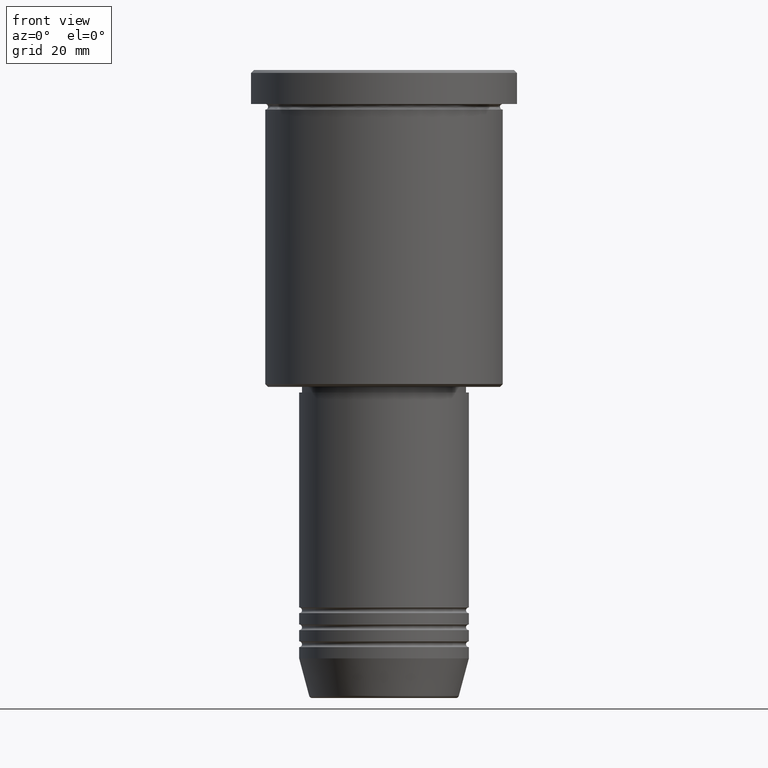
[diagram: clean part render]
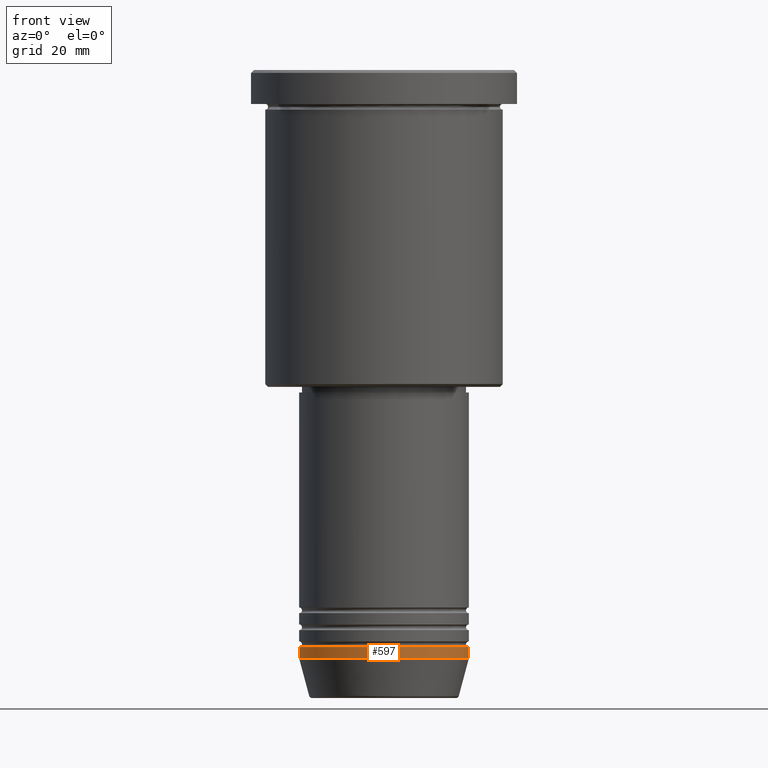
[diagram: same view with one face highlighted and labeled with its STEP entity id]
A machine part, front view. The second image highlights one B-rep face of the part: STEP entity #597.
In plain terms, the highlighted cylindrical surface (partial cylindrical patch) has radius 15 mm, axis along (-0, -0, 1).
Its self-contained STEP definition (entity closure, byte-faithful):
#52 = CARTESIAN_POINT ( 'NONE',  ( 0.000000000000000000, 0.000000000000000000, -104.0000000000000142 ) ) ;
#99 = DIRECTION ( 'NONE',  ( 1.000000000000000000, 0.000000000000000000, 0.000000000000000000 ) ) ;
#133 = ORIENTED_EDGE ( 'NONE', *, *, #996, .T. ) ;
#136 = DIRECTION ( 'NONE',  ( -0.000000000000000000, -0.000000000000000000, 1.000000000000000000 ) ) ;
#141 = FACE_OUTER_BOUND ( 'NONE', #880, .T. ) ;
#193 = VERTEX_POINT ( 'NONE', #867 ) ;
#205 = CIRCLE ( 'NONE', #349, 15.00000000000000000 ) ;
#218 = CARTESIAN_POINT ( 'NONE',  ( -15.00000000000000000, 1.836970198721029589E-15, -104.0000000000000142 ) ) ;
#276 = ORIENTED_EDGE ( 'NONE', *, *, #604, .T. ) ;
#298 = DIRECTION ( 'NONE',  ( -0.000000000000000000, -0.000000000000000000, 1.000000000000000000 ) ) ;
#345 = CARTESIAN_POINT ( 'NONE',  ( 15.00000000000000000, 0.000000000000000000, 0.000000000000000000 ) ) ;
#349 = AXIS2_PLACEMENT_3D ( 'NONE', #539, #445, #99 ) ;
#391 = VERTEX_POINT ( 'NONE', #475 ) ;
#445 = DIRECTION ( 'NONE',  ( -0.000000000000000000, -0.000000000000000000, 1.000000000000000000 ) ) ;
#475 = CARTESIAN_POINT ( 'NONE',  ( -15.00000000000000000, 1.836970198721029589E-15, -102.0000000000000142 ) ) ;
#509 = DIRECTION ( 'NONE',  ( 1.000000000000000000, 0.000000000000000000, 0.000000000000000000 ) ) ;
#539 = CARTESIAN_POINT ( 'NONE',  ( 0.000000000000000000, 0.000000000000000000, -102.0000000000000142 ) ) ;
#597 = ADVANCED_FACE ( 'NONE', ( #141 ), #1149, .T. ) ;
#604 = EDGE_CURVE ( 'NONE', #830, #193, #740, .T. ) ;
#686 = CARTESIAN_POINT ( 'NONE',  ( 0.000000000000000000, 0.000000000000000000, 0.000000000000000000 ) ) ;
#740 = CIRCLE ( 'NONE', #1025, 15.00000000000000000 ) ;
#793 = ORIENTED_EDGE ( 'NONE', *, *, #1053, .F. ) ;
#825 = LINE ( 'NONE', #345, #1179 ) ;
#830 = VERTEX_POINT ( 'NONE', #218 ) ;
#833 = CARTESIAN_POINT ( 'NONE',  ( -15.00000000000000000, 1.836970198721029589E-15, 0.000000000000000000 ) ) ;
#846 = LINE ( 'NONE', #833, #929 ) ;
#867 = CARTESIAN_POINT ( 'NONE',  ( 15.00000000000000000, 0.000000000000000000, -104.0000000000000142 ) ) ;
#880 = EDGE_LOOP ( 'NONE', ( #1063, #276, #133, #793 ) ) ;
#882 = DIRECTION ( 'NONE',  ( 1.000000000000000000, 0.000000000000000000, 0.000000000000000000 ) ) ;
#929 = VECTOR ( 'NONE', #298, 1000.000000000000000 ) ;
#969 = AXIS2_PLACEMENT_3D ( 'NONE', #686, #136, #509 ) ;
#996 = EDGE_CURVE ( 'NONE', #193, #1142, #825, .T. ) ;
#1025 = AXIS2_PLACEMENT_3D ( 'NONE', #52, #1145, #882 ) ;
#1053 = EDGE_CURVE ( 'NONE', #391, #1142, #205, .T. ) ;
#1063 = ORIENTED_EDGE ( 'NONE', *, *, #1182, .F. ) ;
#1127 = CARTESIAN_POINT ( 'NONE',  ( 15.00000000000000000, 0.000000000000000000, -102.0000000000000142 ) ) ;
#1142 = VERTEX_POINT ( 'NONE', #1127 ) ;
#1145 = DIRECTION ( 'NONE',  ( -0.000000000000000000, -0.000000000000000000, 1.000000000000000000 ) ) ;
#1149 = CYLINDRICAL_SURFACE ( 'NONE', #969, 15.00000000000000000 ) ;
#1174 = DIRECTION ( 'NONE',  ( -0.000000000000000000, -0.000000000000000000, 1.000000000000000000 ) ) ;
#1179 = VECTOR ( 'NONE', #1174, 1000.000000000000000 ) ;
#1182 = EDGE_CURVE ( 'NONE', #830, #391, #846, .T. ) ;